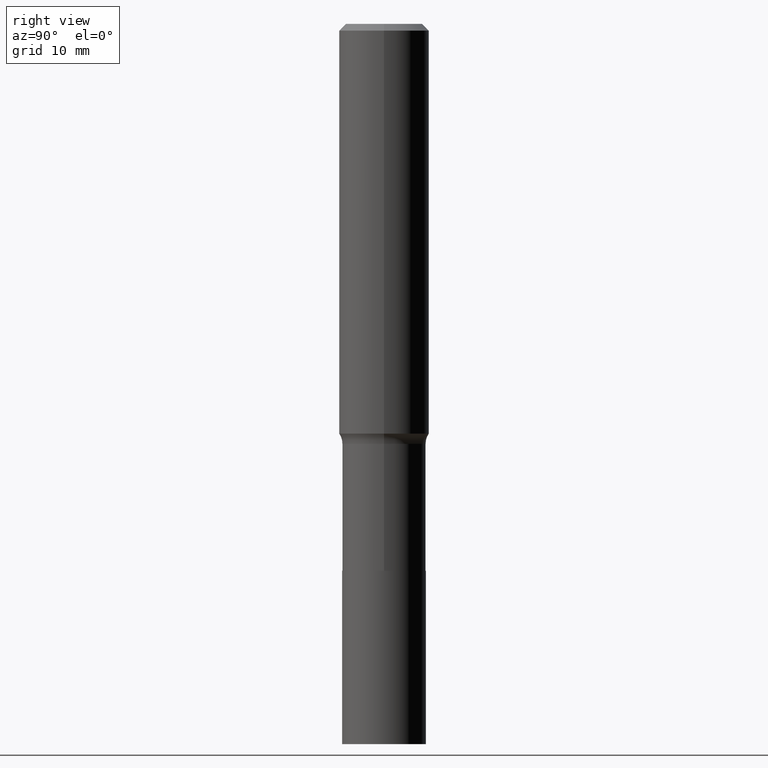
[diagram: clean part render]
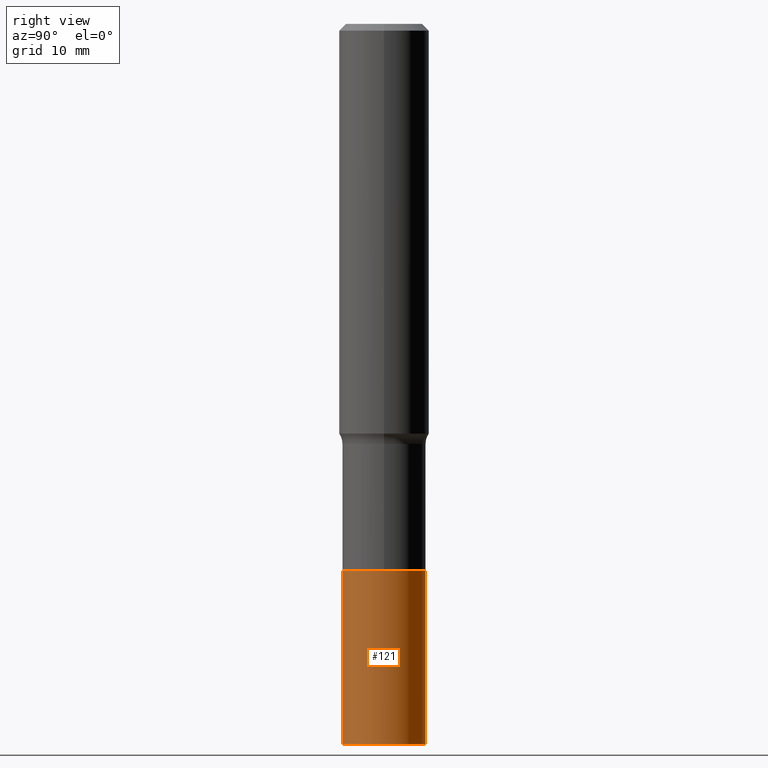
[diagram: same view with one face highlighted and labeled with its STEP entity id]
A machine part, right view. The second image highlights one B-rep face of the part: STEP entity #121.
In plain terms, the highlighted cylindrical surface (partial cylindrical patch) has radius 4.6495 mm, axis along (-0, 0, 1).
Its self-contained STEP definition (entity closure, byte-faithful):
#6 = VERTEX_POINT ( 'NONE', #300 ) ;
#11 = VECTOR ( 'NONE', #313, 39.37007874015748143 ) ;
#44 = AXIS2_PLACEMENT_3D ( 'NONE', #394, #356, #76 ) ;
#53 = VERTEX_POINT ( 'NONE', #310 ) ;
#70 = DIRECTION ( 'NONE',  ( -6.982962677686264344E-15, -1.000000000000000000, 2.984810700534567995E-15 ) ) ;
#76 = DIRECTION ( 'NONE',  ( -6.982962677686264344E-15, -1.000000000000000000, 2.984810700534567995E-15 ) ) ;
#78 = LINE ( 'NONE', #296, #384 ) ;
#121 = ADVANCED_FACE ( 'NONE', ( #238 ), #243, .T. ) ;
#123 = AXIS2_PLACEMENT_3D ( 'NONE', #386, #423, #70 ) ;
#182 = EDGE_CURVE ( 'NONE', #194, #53, #285, .T. ) ;
#194 = VERTEX_POINT ( 'NONE', #382 ) ;
#197 = EDGE_CURVE ( 'NONE', #194, #6, #418, .T. ) ;
#201 = ORIENTED_EDGE ( 'NONE', *, *, #370, .T. ) ;
#215 = VERTEX_POINT ( 'NONE', #363 ) ;
#238 = FACE_OUTER_BOUND ( 'NONE', #410, .T. ) ;
#243 = CYLINDRICAL_SURFACE ( 'NONE', #123, 0.1830499999999999905 ) ;
#249 = CIRCLE ( 'NONE', #398, 0.1830499999999999905 ) ;
#250 = CARTESIAN_POINT ( 'NONE',  ( -1.278231318150412291E-15, -0.1830500000000083449, -2.391599999999999504 ) ) ;
#285 = LINE ( 'NONE', #250, #11 ) ;
#288 = DIRECTION ( 'NONE',  ( -2.446021969847448891E-29, 3.490689176994593856E-15, 1.000000000000000000 ) ) ;
#290 = ORIENTED_EDGE ( 'NONE', *, *, #182, .F. ) ;
#293 = CARTESIAN_POINT ( 'NONE',  ( 5.848583196872372803E-29, -8.350226769977267192E-15, -2.391600000000000392 ) ) ;
#296 = CARTESIAN_POINT ( 'NONE',  ( 1.300648477808921501E-15, 0.1830499999999916083, -2.391600000000000836 ) ) ;
#300 = CARTESIAN_POINT ( 'NONE',  ( 1.300648477808930770E-15, 0.1830499999999889715, -3.149600000000001288 ) ) ;
#310 = CARTESIAN_POINT ( 'NONE',  ( -1.278231318150412291E-15, -0.1830500000000083449, -2.391599999999999504 ) ) ;
#313 = DIRECTION ( 'NONE',  ( -2.446021969847448891E-29, 3.490689176994594250E-15, 1.000000000000000000 ) ) ;
#321 = EDGE_CURVE ( 'NONE', #53, #215, #249, .T. ) ;
#345 = ORIENTED_EDGE ( 'NONE', *, *, #321, .F. ) ;
#356 = DIRECTION ( 'NONE',  ( -2.446021969847448891E-29, 3.490689176994593856E-15, 1.000000000000000000 ) ) ;
#363 = CARTESIAN_POINT ( 'NONE',  ( 1.300648477808940237E-15, 0.1830499999999916083, -2.391600000000000836 ) ) ;
#370 = EDGE_CURVE ( 'NONE', #6, #215, #78, .T. ) ;
#382 = CARTESIAN_POINT ( 'NONE',  ( -1.278231318150393753E-15, -0.1830500000000109817, -3.149600000000000399 ) ) ;
#384 = VECTOR ( 'NONE', #447, 39.37007874015748143 ) ;
#386 = CARTESIAN_POINT ( 'NONE',  ( 5.848583196872372803E-29, -8.350226769977267192E-15, -2.391600000000000392 ) ) ;
#394 = CARTESIAN_POINT ( 'NONE',  ( 7.702667850016740557E-29, -1.099616916613917186E-14, -3.149600000000000843 ) ) ;
#396 = DIRECTION ( 'NONE',  ( -6.982962677686264344E-15, -1.000000000000000000, 2.984810700534567995E-15 ) ) ;
#398 = AXIS2_PLACEMENT_3D ( 'NONE', #293, #288, #396 ) ;
#410 = EDGE_LOOP ( 'NONE', ( #467, #201, #345, #290 ) ) ;
#418 = CIRCLE ( 'NONE', #44, 0.1830499999999999905 ) ;
#423 = DIRECTION ( 'NONE',  ( -2.446021969847448891E-29, 3.490689176994593856E-15, 1.000000000000000000 ) ) ;
#447 = DIRECTION ( 'NONE',  ( -2.446021969847448891E-29, 3.490689176994594250E-15, 1.000000000000000000 ) ) ;
#467 = ORIENTED_EDGE ( 'NONE', *, *, #197, .T. ) ;